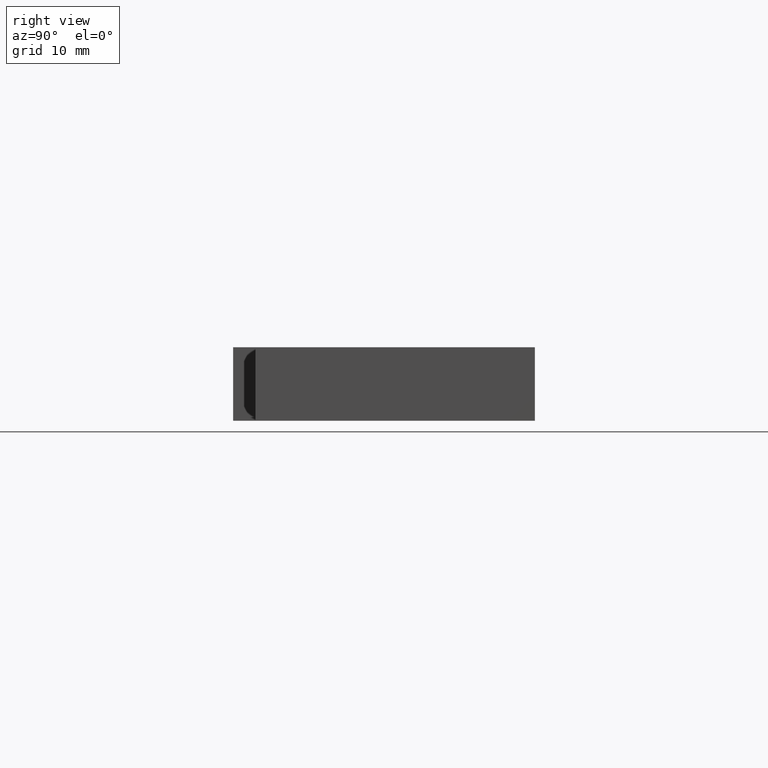
[diagram: clean part render]
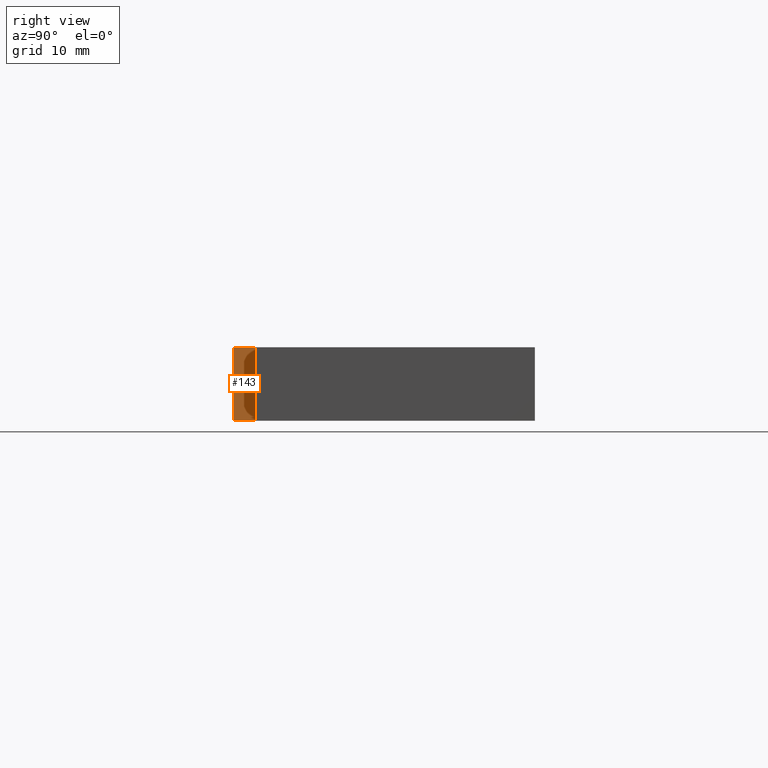
[diagram: same view with one face highlighted and labeled with its STEP entity id]
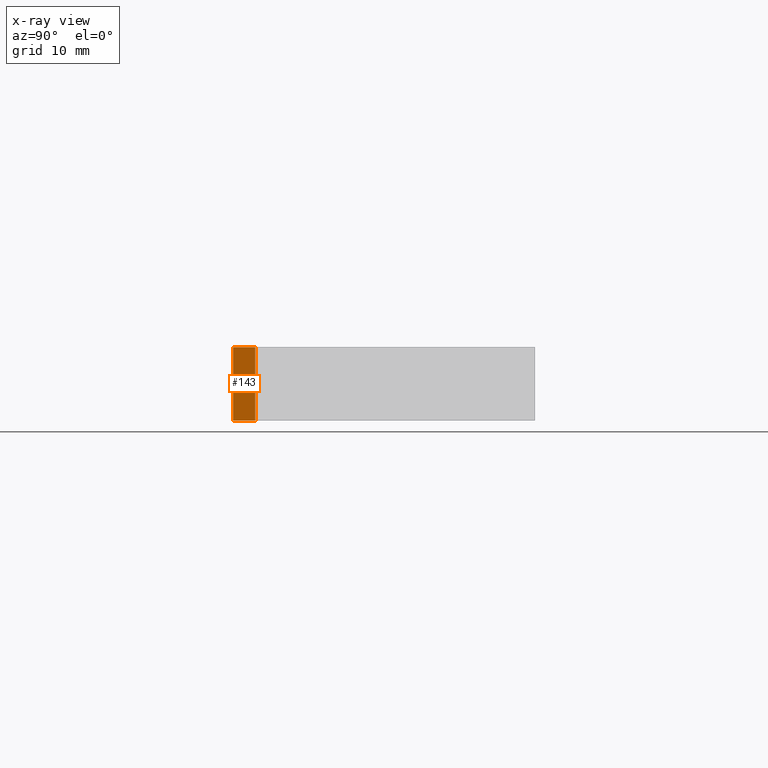
[diagram: x-ray of the same camera — body ghosted, the highlighted face saturated]
A machine part, right view. The second image highlights one B-rep face of the part: STEP entity #143.
The next image is the same camera in x-ray: the body ghosted, the highlighted face saturated — about 0% of this face is hidden behind the body in this view.
In plain terms, the highlighted planar face has unit normal (1, 0, 0).
Its self-contained STEP definition (entity closure, byte-faithful):
#17=FACE_OUTER_BOUND('',#25,.T.);
#25=EDGE_LOOP('',(#104,#105,#106,#107));
#34=LINE('',#225,#52);
#38=LINE('',#234,#56);
#39=LINE('',#235,#57);
#40=LINE('',#236,#58);
#52=VECTOR('',#187,10.);
#56=VECTOR('',#193,10.);
#57=VECTOR('',#194,10.);
#58=VECTOR('',#195,10.);
#70=VERTEX_POINT('',#222);
#71=VERTEX_POINT('',#224);
#74=VERTEX_POINT('',#232);
#75=VERTEX_POINT('',#233);
#82=EDGE_CURVE('',#71,#70,#34,.T.);
#86=EDGE_CURVE('',#74,#75,#38,.T.);
#87=EDGE_CURVE('',#75,#71,#39,.T.);
#88=EDGE_CURVE('',#74,#70,#40,.T.);
#104=ORIENTED_EDGE('',*,*,#86,.T.);
#105=ORIENTED_EDGE('',*,*,#87,.T.);
#106=ORIENTED_EDGE('',*,*,#82,.T.);
#107=ORIENTED_EDGE('',*,*,#88,.F.);
#135=PLANE('',#174);
#143=ADVANCED_FACE('',(#17),#135,.T.);
#174=AXIS2_PLACEMENT_3D('',#231,#191,#192);
#187=DIRECTION('',(-1.1842378929335E-14,1.,0.));
#191=DIRECTION('center_axis',(1.,1.1842378929335E-14,0.));
#192=DIRECTION('ref_axis',(0.,0.,-1.));
#193=DIRECTION('',(1.1842378929335E-14,-1.,0.));
#194=DIRECTION('',(0.,0.,-1.));
#195=DIRECTION('',(0.,0.,-1.));
#222=CARTESIAN_POINT('',(-65.,-5.82867087928207E-15,-5.));
#224=CARTESIAN_POINT('',(-65.,-3.00000000000002,-5.));
#225=CARTESIAN_POINT('',(-65.,-5.82867087928207E-15,-5.));
#231=CARTESIAN_POINT('Origin',(-65.,-5.82867087928207E-15,0.));
#232=CARTESIAN_POINT('',(-65.,-5.82867087928207E-15,5.));
#233=CARTESIAN_POINT('',(-65.,-3.00000000000002,5.));
#234=CARTESIAN_POINT('',(-65.,-5.82867087928207E-15,5.));
#235=CARTESIAN_POINT('',(-65.,-3.00000000000002,0.));
#236=CARTESIAN_POINT('',(-65.,-5.82867087928207E-15,0.));